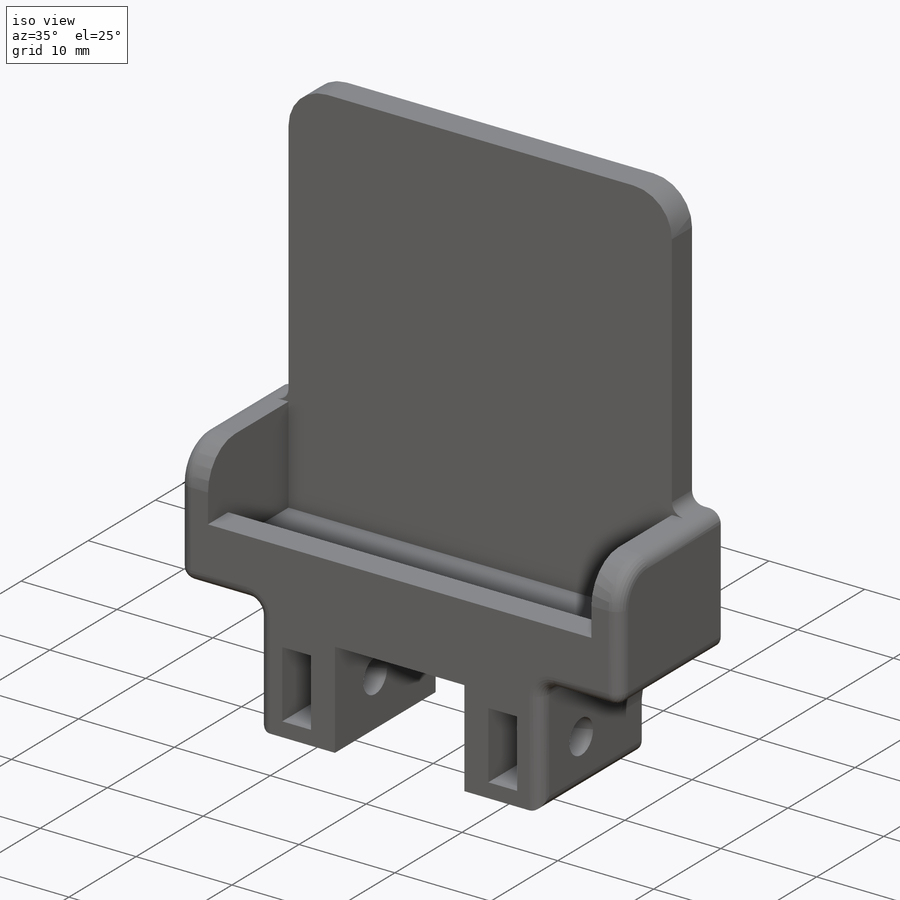
[diagram: iso view]
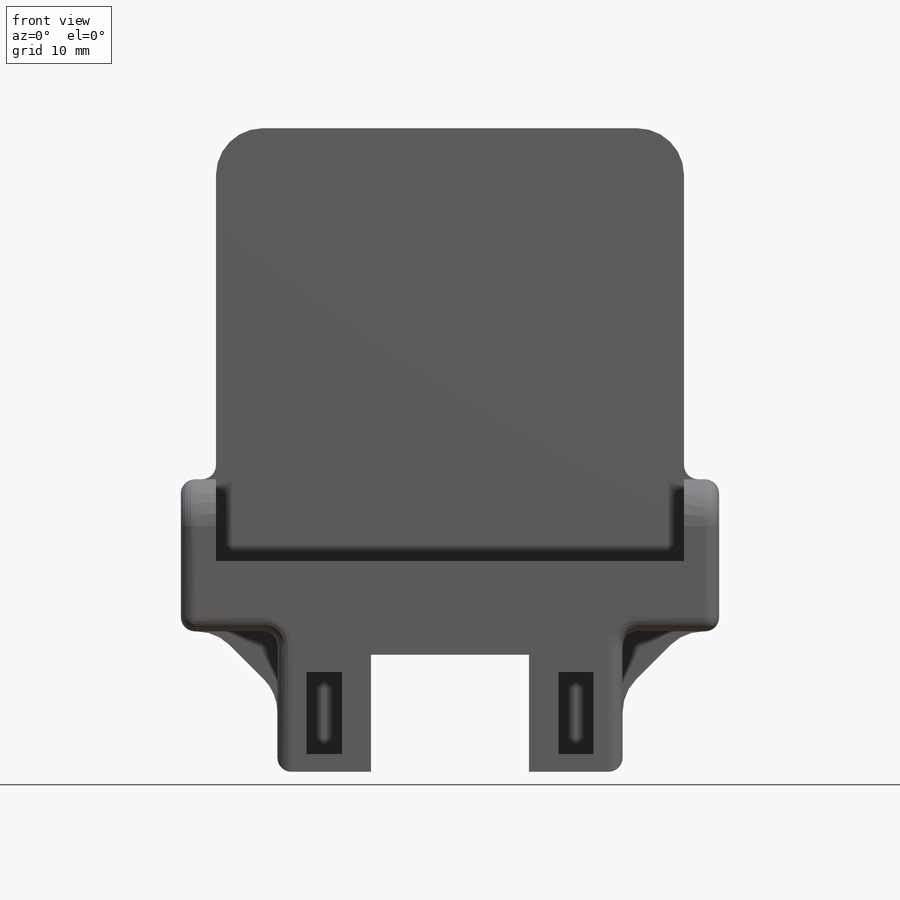
[diagram: front view]
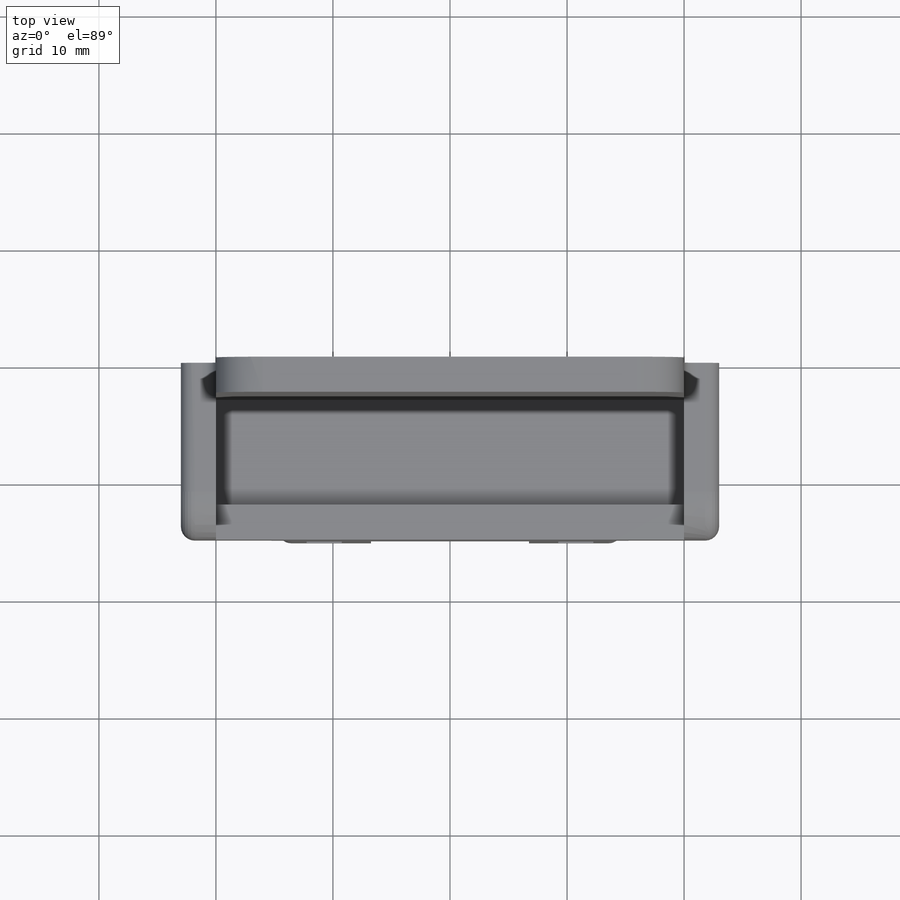
[diagram: top view]
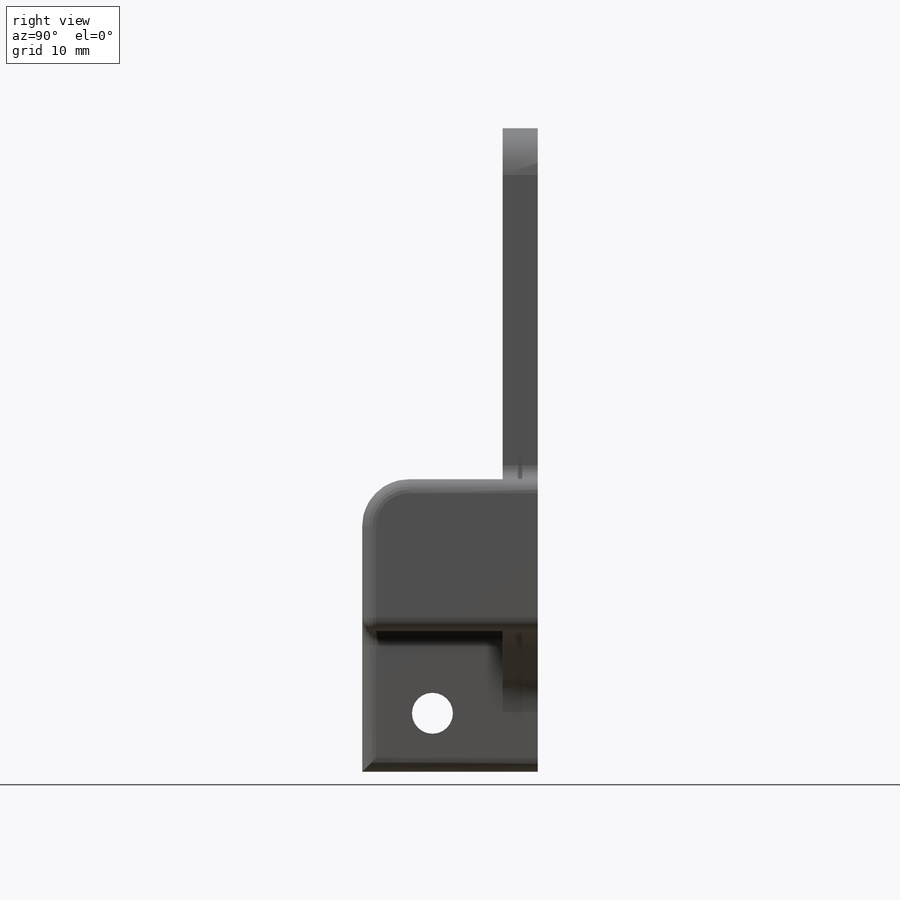
[diagram: right view]
SOLIDWORKS PART (.sldprt)
format: sldprt  version: not decoded by parser v0  size: 309,248 bytes
history: native  units: mm
features: sketch x6, extrude x4, cut_extrude x2, fillet x2, material x1 (+11 scaffold rows collapsed)
feature tree (26):
  scaffold x11  (default folders/planes/origin — collapsed)
  material  "Material <not specified>"
  sketch  "Sketch1"  dims[D1=13.5mm D2=10.0mm D3=5.0mm D4=8.0mm]
  extrude  "Boss-Extrude1"  Depth=15mm
  sketch  "Sketch2"  dims[D1=3.0mm D2=7.0mm]
  cut_extrude  "Cut-Extrude1"  Depth=12mm
  sketch  "Sketch3"  dims[D2=3.5mm D1=6.0mm]
  cut_extrude  "Cut-Extrude2"  [1 undecoded]
  sketch  "Sketch4"  dims[c1.D1=~8.96475mm c2.D1=45.0deg c2.D2=40.0mm c2.D3=40.0mm c2.D4=3.0mm]
  extrude  "Boss-Extrude2"  Depth=3mm
  sketch  "Sketch5"  dims[D1=3.0mm D2=3.0mm D3=10.0mm]
  extrude  "Boss-Extrude4"  [1 undecoded]
  sketch  "Sketch6"  dims[D1=9.0mm]
  extrude  "Boss-Extrude5"  Depth=3mm
  fillet  "Fillet1"  Radius=4mm
  fillet  "Fillet2"  Radius=1.2mm
decode coverage: 12 of 14 modeling features carry decoded parameters
note: ~ marks probable driven/reference dimensions
note: 2 parameter values undecoded
note: suppression state not decoded; provenance and decode notes live in map.json
